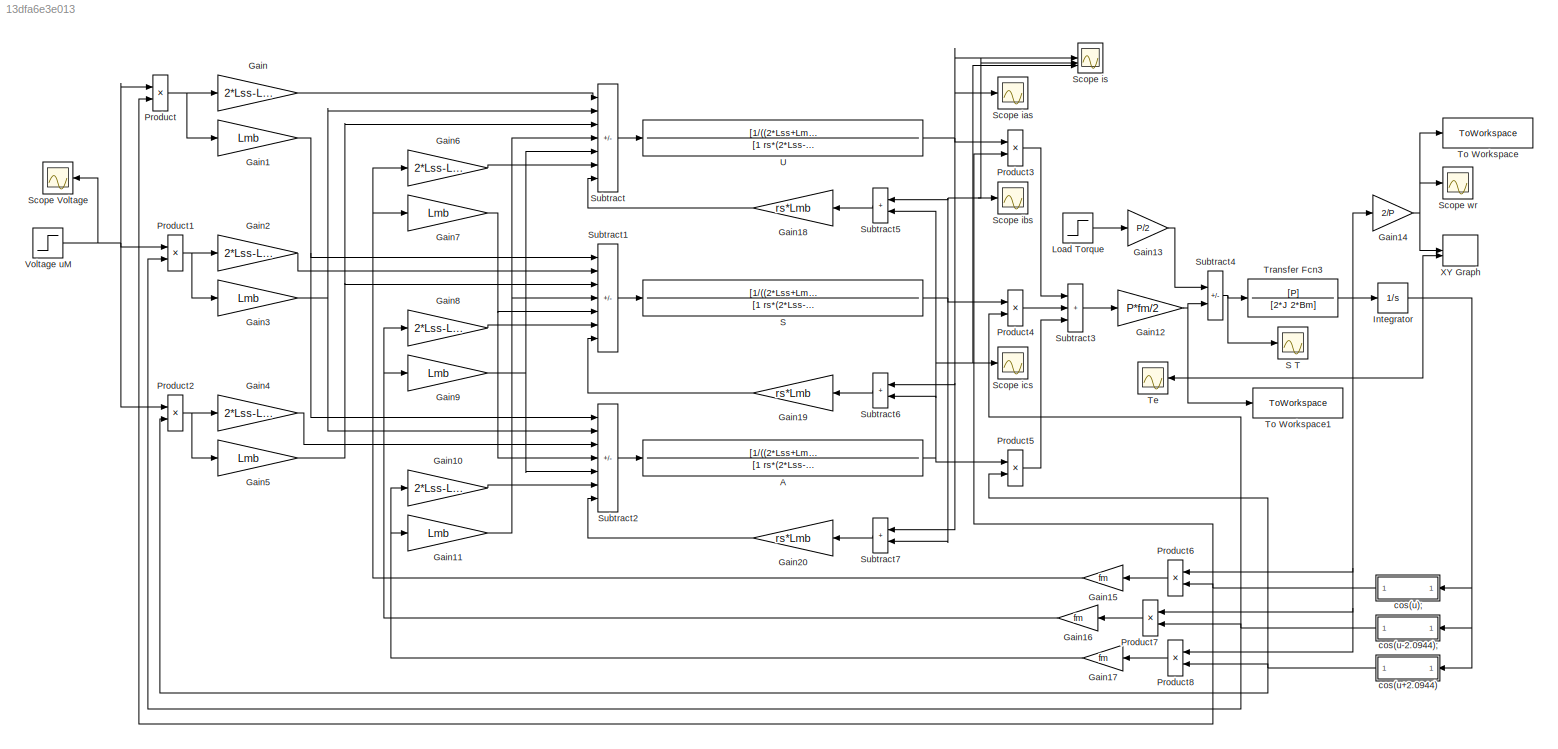
MODEL slx_13dfa6e3e013
KIND model
CONFIG AbsTol = 1e-12
CONFIG EnableMultiTasking = off
CONFIG FixedStep = auto
CONFIG MaxStep = auto
CONFIG MinStep = auto
CONFIG RelTol = 1e-12
CONFIG SampleTimeConstraint = Unconstrained
CONFIG SolverName = VariableStepAuto
CONFIG StartTime = 0.0
CONFIG StopTime = 0.2
BLOCK [TransferFcn] A
  Denominator = [1 rs*(2*Lss-Lmb)/(2*Lss^2-Lss*Lmb-Lmb^2)]
  Numerator = [1/((2*Lss+Lmb)*(Lss-Lmb))]
BLOCK [Gain] Gain
  Gain = 2*Lss-Lmb
BLOCK [Gain] Gain1
  Gain = Lmb
BLOCK [Gain] Gain10
  Gain = 2*Lss-Lmb
BLOCK [Gain] Gain11
  Gain = Lmb
BLOCK [Gain] Gain12
  Gain = P*fm/2
BLOCK [Gain] Gain13
  Gain = P/2
BLOCK [Gain] Gain14
  Gain = 2/P
BLOCK [Gain] Gain15
  Gain = fm
  NameLocation = top
BLOCK [Gain] Gain16
  Gain = fm
  NameLocation = top
BLOCK [Gain] Gain17
  Gain = fm
  NameLocation = top
BLOCK [Gain] Gain18
  Gain = rs*Lmb
  NameLocation = top
BLOCK [Gain] Gain19
  Gain = rs*Lmb
  NameLocation = top
BLOCK [Gain] Gain2
  Gain = 2*Lss-Lmb
BLOCK [Gain] Gain20
  Gain = rs*Lmb
  NameLocation = top
BLOCK [Gain] Gain3
  Gain = Lmb
BLOCK [Gain] Gain4
  Gain = 2*Lss-Lmb
BLOCK [Gain] Gain5
  Gain = Lmb
BLOCK [Gain] Gain6
  Gain = 2*Lss-Lmb
BLOCK [Gain] Gain7
  Gain = Lmb
BLOCK [Gain] Gain8
  Gain = 2*Lss-Lmb
BLOCK [Gain] Gain9
  Gain = Lmb
BLOCK [Integrator] Integrator
BLOCK [Step] Load Torque
  After = TL
  SampleTime = 0
  Time = 0
BLOCK [Product] Product
BLOCK [Product] Product1
BLOCK [Product] Product2
BLOCK [Product] Product3
BLOCK [Product] Product4
BLOCK [Product] Product5
BLOCK [Product] Product6
  NameLocation = top
BLOCK [Product] Product7
  NameLocation = top
BLOCK [Product] Product8
  NameLocation = top
BLOCK [TransferFcn] S
  Denominator = [1 rs*(2*Lss-Lmb)/(2*Lss^2-Lss*Lmb-Lmb^2)]
  Numerator = [1/((2*Lss+Lmb)*(Lss-Lmb))]
BLOCK [Scope] S T
  Floating = off
  NumInputPorts = 1
  ScopeSpecificationString = Simulink.scopes.TimeScopeBlockCfg('CurrentConfiguration', extmgr.ConfigurationSet(extmgr.Configuration('Core','General UI',true),extmgr.Configuration('Core','Source UI',true),extmgr.Configuration('Sources','WiredSimulink',true,'DataLoggingVariableName','ScopeData6'),extmgr.Configuration('Visuals','Time Domain',true,'SerializedDisplays',{struct('MinYLimReal','-19.21232','MaxYLimReal','12.91085','YL...<+1555ch>
BLOCK [Scope] Scope Voltage
  Floating = off
  NumInputPorts = 1
  ScopeSpecificationString = Simulink.scopes.TimeScopeBlockCfg('CurrentConfiguration', extmgr.ConfigurationSet(extmgr.Configuration('Core','General UI',true),extmgr.Configuration('Core','Source UI',true),extmgr.Configuration('Sources','WiredSimulink',true,'DataLoggingVariableName','ScopeData1'),extmgr.Configuration('Visuals','Time Domain',true,'SerializedDisplays',{struct('MinYLimReal','40.00000','MaxYLimReal','60.00000','YLa...<+1408ch>
BLOCK [Scope] Scope ias
  Floating = off
  NumInputPorts = 1
  ScopeSpecificationString = Simulink.scopes.TimeScopeBlockCfg('CurrentConfiguration', extmgr.ConfigurationSet(extmgr.Configuration('Core','General UI',true),extmgr.Configuration('Core','Source UI',true),extmgr.Configuration('Sources','WiredSimulink',true),extmgr.Configuration('Visuals','Time Domain',true,'SerializedDisplays',{struct('MinYLimReal','-6.90747','MaxYLimReal','21.52142','YLabelReal','','MinYLimMag','0.00000','Max...<+1350ch>
BLOCK [Scope] Scope ibs
  Floating = off
  NumInputPorts = 1
  ScopeSpecificationString = Simulink.scopes.TimeScopeBlockCfg('CurrentConfiguration', extmgr.ConfigurationSet(extmgr.Configuration('Core','General UI',true),extmgr.Configuration('Core','Source UI',true),extmgr.Configuration('Sources','WiredSimulink',true,'DataLoggingVariableName','ScopeData1'),extmgr.Configuration('Visuals','Time Domain',true),extmgr.Configuration('Tools','Plot Navigation',true),extmgr.Configuration('Tools',...<+40ch>
BLOCK [Scope] Scope ics
  Floating = off
  NumInputPorts = 1
  ScopeSpecificationString = Simulink.scopes.TimeScopeBlockCfg('CurrentConfiguration', extmgr.ConfigurationSet(extmgr.Configuration('Core','General UI',true),extmgr.Configuration('Core','Source UI',true),extmgr.Configuration('Sources','WiredSimulink',true,'DataLoggingVariableName','ScopeData2'),extmgr.Configuration('Visuals','Time Domain',true),extmgr.Configuration('Tools','Plot Navigation',true),extmgr.Configuration('Tools',...<+40ch>
BLOCK [Scope] Scope is
  Floating = off
  NumInputPorts = 3
  ScopeSpecificationString = Simulink.scopes.TimeScopeBlockCfg('CurrentConfiguration', extmgr.ConfigurationSet(extmgr.Configuration('Core','General UI',true),extmgr.Configuration('Core','Source UI',true),extmgr.Configuration('Sources','WiredSimulink',true,'DataLoggingVariableName','ScopeData4'),extmgr.Configuration('Visuals','Time Domain',true,'SerializedDisplays',{struct('MinYLimReal','-14.73184','MaxYLimReal','22.3908','YLa...<+1697ch>
BLOCK [Scope] Scope wr
  Floating = off
  NumInputPorts = 1
  ScopeSpecificationString = Simulink.scopes.TimeScopeBlockCfg('CurrentConfiguration', extmgr.ConfigurationSet(extmgr.Configuration('Core','General UI',true),extmgr.Configuration('Core','Source UI',true),extmgr.Configuration('Sources','WiredSimulink',true,'DataLoggingVariableName','ScopeData3'),extmgr.Configuration('Visuals','Time Domain',true,'SerializedDisplays',{struct('MinYLimReal','-21.99203','MaxYLimReal','195.58967','Y...<+1548ch>
BLOCK [Sum] Subtract
  IconShape = rectangular
  Inputs = +++----
BLOCK [Sum] Subtract1
  IconShape = rectangular
  Inputs = +++----
BLOCK [Sum] Subtract2
  IconShape = rectangular
  Inputs = +++----
BLOCK [Sum] Subtract3
  IconShape = rectangular
  Inputs = +++
BLOCK [Sum] Subtract4
  IconShape = rectangular
  Inputs = -+
BLOCK [Sum] Subtract5
  IconShape = rectangular
  NameLocation = top
BLOCK [Sum] Subtract6
  IconShape = rectangular
  NameLocation = top
BLOCK [Sum] Subtract7
  IconShape = rectangular
  NameLocation = top
BLOCK [Scope] Te
  Floating = off
  NumInputPorts = 1
  ScopeSpecificationString = Simulink.scopes.TimeScopeBlockCfg('CurrentConfiguration', extmgr.ConfigurationSet(extmgr.Configuration('Core','General UI',true),extmgr.Configuration('Core','Source UI',true),extmgr.Configuration('Sources','WiredSimulink',true,'DataLoggingVariableName','ScopeData5'),extmgr.Configuration('Visuals','Time Domain',true,'SerializedDisplays',{struct('MinYLimReal','-3.957','MaxYLimReal','9.51791','YLabel...<+1518ch>
BLOCK [ToWorkspace] To Workspace
  FixptAsFi = on
  MaxDataPoints = inf
  SampleTime = -1
  SaveFormat = Timeseries
  VariableName = sim_vel
BLOCK [ToWorkspace] To Workspace1
  FixptAsFi = on
  MaxDataPoints = inf
  SampleTime = -1
  SaveFormat = Timeseries
  VariableName = sim_torq
BLOCK [TransferFcn] Transfer Fcn3
  Denominator = [2*J 2*Bm]
  Numerator = [P]
BLOCK [TransferFcn] U
  Denominator = [1 rs*(2*Lss-Lmb)/(2*Lss^2-Lss*Lmb-Lmb^2)]
  Numerator = [1/((2*Lss+Lmb)*(Lss-Lmb))]
BLOCK [Step] Voltage uM
  After = uM
  SampleTime = 0
  Time = 0
BLOCK [Record] XY Graph
  CompatibilityTag = XY
  FileSettingsInternal = {"entries":[{"content":{"excelSettings":{"content":{},"type":"Streamout.ExcelSettings"}},"type":"Streamout.FileSettingStorage","uuid":""}],"packageUris":["http:\/\/schema.mathworks.com\/mf0\/streamout_blocks\/R2020a"],"version":"1.0"}
  Layout = [1 1]
  SignalsInternal = {"entries":[{"content":{"signals":[{"content":{"blockPath":[],"channel":[],"dimensions":[1],"domain":"","lineColor":"#a2142f","lineStyle":"DOTTED","plots":[1],"port":1,"sid":[""],"signalID":190,"signalName":"Gain14"},"type":"RecordBlkView.Signal","uuid":""},{"content":{"blockPath":[],"channel":[],"dimensions":[1],"domain":"","lineColor":"#139fff","plots":[1],"port":2,"sid":[""],"signalID":194,"sig...<+205ch>
  VisualizationBindings = {"xyplotplugin":{"info":[{"series":[{"bindingParametersList":[{"parameter":"X-Axis","signalID":190,"signalName":"Gain14"},{"parameter":"Y-Axis","signalID":194,"signalName":"Gain12"}],"seriesID":20127}],"subplotID":1}]}}
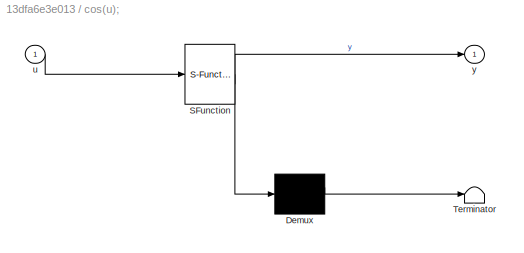
BLOCK [SubSystem] cos(u);
  ErrorFcn = Stateflow.Translate.translate
  LibrarySourceBlock = simulink/User-Defined\nFunctions/MATLAB Function
  PermitHierarchicalResolution = ExplicitOnly
  SFBlockType = MATLAB Function
  TreatAsAtomicUnit = on
BLOCK [Demux] cos(u);/ Demux 
  Outputs = 1
BLOCK [S-Function] cos(u);/ SFunction 
  EnableBusSupport = on
  FunctionName = sf_sfun
  PortCounts = [1 2]
  SFcnIsStateOwnerBlock = off
  SFunctionDeploymentMode = off
  Tag = Stateflow S-Function 2
BLOCK [Terminator] cos(u);/ Terminator 
BLOCK [Inport] cos(u);/u
BLOCK [Outport] cos(u);/y
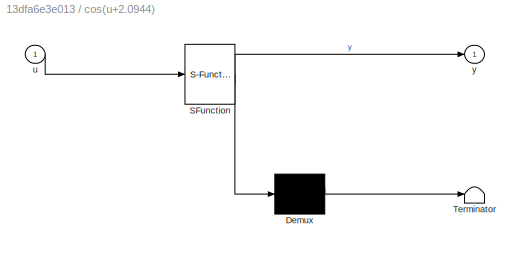
BLOCK [SubSystem] cos(u+2.0944)
  ErrorFcn = Stateflow.Translate.translate
  LibrarySourceBlock = simulink/User-Defined\nFunctions/MATLAB Function
  PermitHierarchicalResolution = ExplicitOnly
  SFBlockType = MATLAB Function
  TreatAsAtomicUnit = on
BLOCK [Demux] cos(u+2.0944)/ Demux 
  Outputs = 1
BLOCK [S-Function] cos(u+2.0944)/ SFunction 
  EnableBusSupport = on
  FunctionName = sf_sfun
  PortCounts = [1 2]
  SFcnIsStateOwnerBlock = off
  SFunctionDeploymentMode = off
  Tag = Stateflow S-Function 3
BLOCK [Terminator] cos(u+2.0944)/ Terminator 
BLOCK [Inport] cos(u+2.0944)/u
BLOCK [Outport] cos(u+2.0944)/y
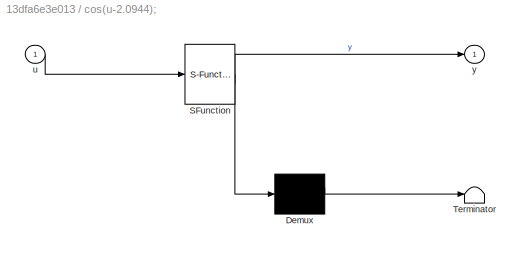
BLOCK [SubSystem] cos(u-2.0944);
  ErrorFcn = Stateflow.Translate.translate
  LibrarySourceBlock = simulink/User-Defined\nFunctions/MATLAB Function
  PermitHierarchicalResolution = ExplicitOnly
  SFBlockType = MATLAB Function
  TreatAsAtomicUnit = on
BLOCK [Demux] cos(u-2.0944);/ Demux 
  Outputs = 1
BLOCK [S-Function] cos(u-2.0944);/ SFunction 
  EnableBusSupport = on
  FunctionName = sf_sfun
  PortCounts = [1 2]
  SFcnIsStateOwnerBlock = off
  SFunctionDeploymentMode = off
  Tag = Stateflow S-Function 1
BLOCK [Terminator] cos(u-2.0944);/ Terminator 
BLOCK [Inport] cos(u-2.0944);/u
BLOCK [Outport] cos(u-2.0944);/y
NET A:1 -> Product5:1, Scope ics:1, Scope is:3, Subtract5:2, Subtract6:2
LINE Gain10:1 -> Subtract2:6
NET Gain11:1 -> Subtract1:4, Subtract:4
NET Gain12:1 -> Subtract4:2, Te:1, To Workspace1:1, XY Graph:2
LINE Gain13:1 -> Subtract4:1
NET Gain14:1 -> Scope wr:1, To Workspace:1, XY Graph:1
NET Gain15:1 -> Gain6:1, Gain7:1
NET Gain16:1 -> Gain8:1, Gain9:1
NET Gain17:1 -> Gain10:1, Gain11:1
LINE Gain18:1 -> Subtract:7
LINE Gain19:1 -> Subtract1:7
NET Gain1:1 -> Subtract1:1, Subtract2:1
LINE Gain20:1 -> Subtract2:7
LINE Gain2:1 -> Subtract1:2
NET Gain3:1 -> Subtract2:2, Subtract:2
LINE Gain4:1 -> Subtract2:3
NET Gain5:1 -> Subtract1:3, Subtract:3
LINE Gain6:1 -> Subtract:6
NET Gain7:1 -> Subtract1:5, Subtract2:4
LINE Gain8:1 -> Subtract1:6
NET Gain9:1 -> Subtract2:5, Subtract:5
LINE Gain:1 -> Subtract:1
NET Integrator:1 -> cos(u);:1, cos(u+2.0944):1, cos(u-2.0944);:1
LINE Load Torque:1 -> Gain13:1
NET Product1:1 -> Gain2:1, Gain3:1
NET Product2:1 -> Gain4:1, Gain5:1
LINE Product3:1 -> Subtract3:1
LINE Product4:1 -> Subtract3:2
LINE Product5:1 -> Subtract3:3
LINE Product6:1 -> Gain15:1
LINE Product7:1 -> Gain16:1
LINE Product8:1 -> Gain17:1
NET Product:1 -> Gain1:1, Gain:1
NET S:1 -> Product4:1, Scope ibs:1, Scope is:2, Subtract5:1, Subtract7:2
LINE Subtract1:1 -> S:1
LINE Subtract2:1 -> A:1
LINE Subtract3:1 -> Gain12:1
NET Subtract4:1 -> S T:1, Transfer Fcn3:1
LINE Subtract5:1 -> Gain18:1
LINE Subtract6:1 -> Gain19:1
LINE Subtract7:1 -> Gain20:1
LINE Subtract:1 -> U:1
NET Transfer Fcn3:1 -> Gain14:1, Integrator:1, Product6:1, Product7:1, Product8:1
NET U:1 -> Product3:1, Scope ias:1, Scope is:1, Subtract6:1, Subtract7:1
NET Voltage uM:1 -> Product1:1, Product2:1, Product:1, Scope Voltage:1
NET cos(u);:1 -> Product3:2, Product6:2, Product:2
NET cos(u+2.0944):1 -> Product2:2, Product5:2, Product8:2
NET cos(u-2.0944);:1 -> Product1:2, Product4:2, Product7:2
note: NET lines group one-source signal fan-out (src -> all destinations, sorted); 1:1 wires keep LINE
CHART cos(u); states=1 transitions=1
  STATE_LABEL 'eML_blk_kernel()'
  STATE_LABEL 'SCRIPT:\nfunction y = fcn(u)\n\ny = cos(u);\n'
CHART cos(u+2.0944) states=1 transitions=1
  STATE_LABEL 'eML_blk_kernel()'
  STATE_LABEL 'SCRIPT:\nfunction y = fcn(u)\n\ny = cos(u+2.0944);\n'
CHART cos(u-2.0944); states=1 transitions=1
  STATE_LABEL 'eML_blk_kernel()'
  STATE_LABEL 'SCRIPT:\nfunction y = fcn(u)\n\ny = cos(u-2.0944);\n'
CHART  states=0 transitions=0
CHART  states=0 transitions=0
CHART  states=0 transitions=0
